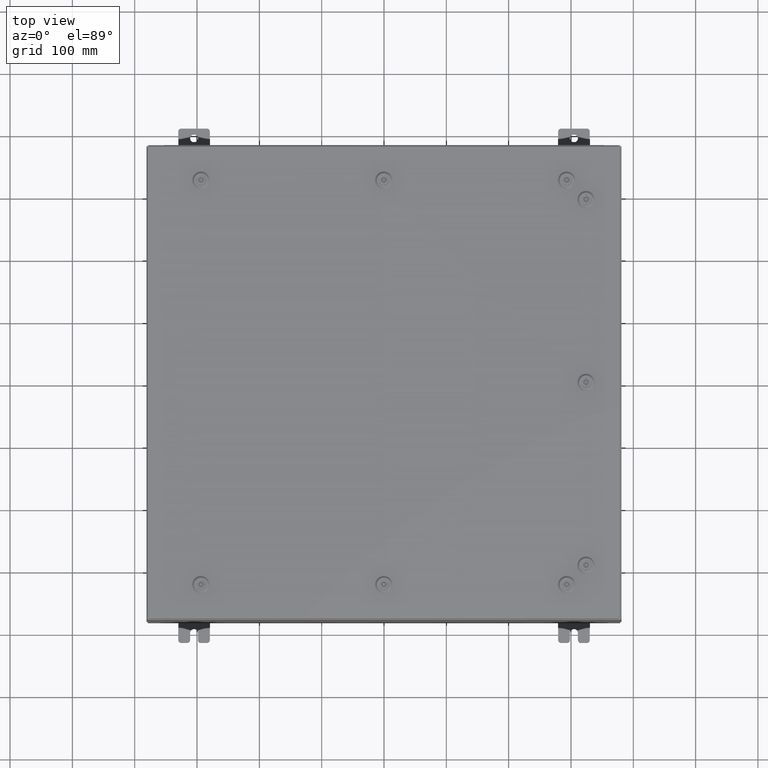
[diagram: clean part render]
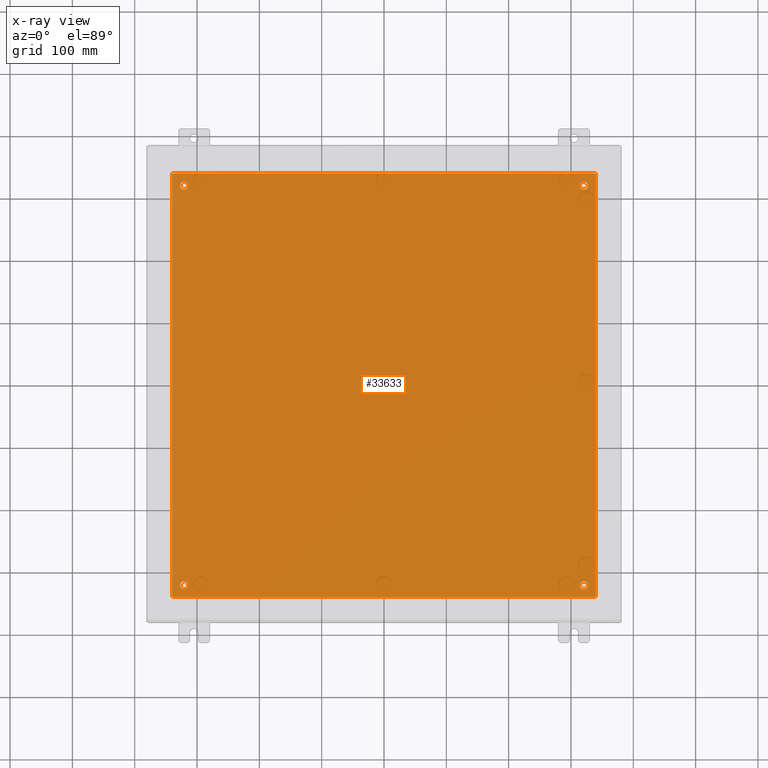
[diagram: x-ray — body ghosted, one internal face saturated and labeled with its STEP entity id]
A machine part, top view, then the same camera in x-ray: the body is ghosted and one INTERNAL B-rep face — a face not visible from any outside direction — is saturated and labeled: STEP entity #33633.
In plain terms, the highlighted planar face has unit normal (0, 0, -1).
Its self-contained STEP definition (entity closure, byte-faithful):
#714 = CIRCLE ( 'NONE', #2988, 0.2500000000000008900 ) ;
#1067 = DIRECTION ( 'NONE',  ( 0.0000000000000000000, 1.000000000000000000, 0.0000000000000000000 ) ) ;
#1345 = DIRECTION ( 'NONE',  ( -0.0000000000000000000, -0.0000000000000000000, 1.000000000000000000 ) ) ;
#1379 = DIRECTION ( 'NONE',  ( -0.0000000000000000000, -0.0000000000000000000, 1.000000000000000000 ) ) ;
#2248 = CIRCLE ( 'NONE', #10581, 0.2500000000000008900 ) ;
#2660 = CARTESIAN_POINT ( 'NONE',  ( 12.87500000000000500, -12.62500000000000000, -0.1039999999999999800 ) ) ;
#2787 = DIRECTION ( 'NONE',  ( -1.000000000000000000, 0.0000000000000000000, 0.0000000000000000000 ) ) ;
#2988 = AXIS2_PLACEMENT_3D ( 'NONE', #12625, #47983, #17736 ) ;
#3883 = ORIENTED_EDGE ( 'NONE', *, *, #20614, .F. ) ;
#4132 = LINE ( 'NONE', #39461, #39714 ) ;
#4395 = CIRCLE ( 'NONE', #26288, 0.2500000000000008900 ) ;
#4664 = CARTESIAN_POINT ( 'NONE',  ( 13.38299999999999900, 13.38299999999999700, -0.1040000000000009100 ) ) ;
#5447 = VERTEX_POINT ( 'NONE', #11647 ) ;
#5667 = PLANE ( 'NONE',  #16362 ) ;
#6120 = DIRECTION ( 'NONE',  ( -0.0000000000000000000, -0.0000000000000000000, 1.000000000000000000 ) ) ;
#7045 = VERTEX_POINT ( 'NONE', #4664 ) ;
#8343 = AXIS2_PLACEMENT_3D ( 'NONE', #27027, #62480, #32063 ) ;
#9011 = ORIENTED_EDGE ( 'NONE', *, *, #16646, .T. ) ;
#10581 = AXIS2_PLACEMENT_3D ( 'NONE', #56795, #26489, #61929 ) ;
#10602 = CARTESIAN_POINT ( 'NONE',  ( -13.38299999999999900, 13.38299999999999700, -0.1040000000000009100 ) ) ;
#10727 = DIRECTION ( 'NONE',  ( -1.000000000000000000, 0.0000000000000000000, -0.0000000000000000000 ) ) ;
#11104 = CARTESIAN_POINT ( 'NONE',  ( -12.37500000000000400, -12.62500000000000000, -0.1039999999999999800 ) ) ;
#11647 = CARTESIAN_POINT ( 'NONE',  ( -13.38299999999999900, -13.38299999999999900, -0.1040000000000009100 ) ) ;
#12415 = DIRECTION ( 'NONE',  ( -0.0000000000000000000, -0.0000000000000000000, 1.000000000000000000 ) ) ;
#12625 = CARTESIAN_POINT ( 'NONE',  ( 12.62500000000000400, 12.62500000000000000, -0.1039999999999999800 ) ) ;
#12719 = CARTESIAN_POINT ( 'NONE',  ( 12.37500000000000400, -12.62500000000000000, -0.1039999999999999800 ) ) ;
#12848 = VERTEX_POINT ( 'NONE', #11104 ) ;
#14399 = FACE_BOUND ( 'NONE', #43128, .T. ) ;
#14846 = CARTESIAN_POINT ( 'NONE',  ( -12.87500000000000500, 12.62500000000000000, -0.1039999999999999800 ) ) ;
#16071 = ORIENTED_EDGE ( 'NONE', *, *, #32664, .T. ) ;
#16362 = AXIS2_PLACEMENT_3D ( 'NONE', #30779, #40749, #10727 ) ;
#16646 = EDGE_CURVE ( 'NONE', #58703, #39106, #4395, .T. ) ;
#17312 = ORIENTED_EDGE ( 'NONE', *, *, #38198, .F. ) ;
#17736 = DIRECTION ( 'NONE',  ( -1.000000000000000000, 0.0000000000000000000, 0.0000000000000000000 ) ) ;
#17975 = EDGE_CURVE ( 'NONE', #42932, #57789, #43805, .T. ) ;
#19218 = CIRCLE ( 'NONE', #37064, 0.2500000000000008900 ) ;
#19616 = DIRECTION ( 'NONE',  ( -1.000000000000000000, -0.0000000000000000000, -0.0000000000000000000 ) ) ;
#20442 = EDGE_LOOP ( 'NONE', ( #3883, #62922, #17312, #30615 ) ) ;
#20614 = EDGE_CURVE ( 'NONE', #5447, #23952, #4132, .T. ) ;
#20681 = VERTEX_POINT ( 'NONE', #54798 ) ;
#21953 = AXIS2_PLACEMENT_3D ( 'NONE', #31631, #1379, #36733 ) ;
#22074 = VERTEX_POINT ( 'NONE', #37274 ) ;
#23952 = VERTEX_POINT ( 'NONE', #25580 ) ;
#24440 = DIRECTION ( 'NONE',  ( 1.000000000000000000, -0.0000000000000000000, -0.0000000000000000000 ) ) ;
#25464 = ORIENTED_EDGE ( 'NONE', *, *, #17975, .T. ) ;
#25580 = CARTESIAN_POINT ( 'NONE',  ( 13.38299999999999900, -13.38299999999999700, -0.1040000000000009100 ) ) ;
#26224 = ORIENTED_EDGE ( 'NONE', *, *, #38656, .T. ) ;
#26288 = AXIS2_PLACEMENT_3D ( 'NONE', #36338, #6120, #41445 ) ;
#26297 = FACE_BOUND ( 'NONE', #59416, .T. ) ;
#26489 = DIRECTION ( 'NONE',  ( -0.0000000000000000000, -0.0000000000000000000, 1.000000000000000000 ) ) ;
#27027 = CARTESIAN_POINT ( 'NONE',  ( -12.62500000000000400, -12.62500000000000000, -0.1039999999999999800 ) ) ;
#27855 = FACE_BOUND ( 'NONE', #59187, .T. ) ;
#28868 = DIRECTION ( 'NONE',  ( 0.0000000000000000000, -1.000000000000000000, 0.0000000000000000000 ) ) ;
#30615 = ORIENTED_EDGE ( 'NONE', *, *, #32398, .F. ) ;
#30665 = CARTESIAN_POINT ( 'NONE',  ( 12.37500000000000400, 12.62500000000000000, -0.1039999999999999800 ) ) ;
#30672 = VECTOR ( 'NONE', #19616, 39.37007874015748100 ) ;
#30779 = CARTESIAN_POINT ( 'NONE',  ( 0.0000000000000000000, 0.0000000000000000000, -0.1039999999999999800 ) ) ;
#30981 = FACE_BOUND ( 'NONE', #57098, .T. ) ;
#31595 = CARTESIAN_POINT ( 'NONE',  ( -12.62500000000000400, -12.62500000000000000, -0.1039999999999999800 ) ) ;
#31631 = CARTESIAN_POINT ( 'NONE',  ( 12.62500000000000400, -12.62500000000000000, -0.1039999999999999800 ) ) ;
#32063 = DIRECTION ( 'NONE',  ( -1.000000000000000000, 0.0000000000000000000, 0.0000000000000000000 ) ) ;
#32289 = VERTEX_POINT ( 'NONE', #10602 ) ;
#32398 = EDGE_CURVE ( 'NONE', #23952, #7045, #37415, .T. ) ;
#32499 = AXIS2_PLACEMENT_3D ( 'NONE', #31595, #1345, #36701 ) ;
#32664 = EDGE_CURVE ( 'NONE', #20681, #36180, #19218, .T. ) ;
#33033 = DIRECTION ( 'NONE',  ( -0.0000000000000000000, -0.0000000000000000000, 1.000000000000000000 ) ) ;
#33633 = ADVANCED_FACE ( 'NONE', ( #30981, #26297, #27855, #14399, #65183 ), #5667, .T. ) ;
#36180 = VERTEX_POINT ( 'NONE', #14846 ) ;
#36338 = CARTESIAN_POINT ( 'NONE',  ( 12.62500000000000400, -12.62500000000000000, -0.1039999999999999800 ) ) ;
#36701 = DIRECTION ( 'NONE',  ( -1.000000000000000000, 0.0000000000000000000, 0.0000000000000000000 ) ) ;
#36733 = DIRECTION ( 'NONE',  ( -1.000000000000000000, 0.0000000000000000000, 0.0000000000000000000 ) ) ;
#37064 = AXIS2_PLACEMENT_3D ( 'NONE', #63487, #33033, #2787 ) ;
#37274 = CARTESIAN_POINT ( 'NONE',  ( -12.87500000000000500, -12.62500000000000000, -0.1039999999999999800 ) ) ;
#37415 = LINE ( 'NONE', #56617, #50881 ) ;
#38198 = EDGE_CURVE ( 'NONE', #7045, #32289, #42536, .T. ) ;
#38656 = EDGE_CURVE ( 'NONE', #57789, #42932, #714, .T. ) ;
#39106 = VERTEX_POINT ( 'NONE', #12719 ) ;
#39461 = CARTESIAN_POINT ( 'NONE',  ( -13.50000000000000000, -13.38299999999999900, -0.1040000000000009100 ) ) ;
#39714 = VECTOR ( 'NONE', #24440, 39.37007874015748100 ) ;
#39823 = EDGE_CURVE ( 'NONE', #32289, #5447, #44905, .T. ) ;
#40749 = DIRECTION ( 'NONE',  ( 0.0000000000000000000, 0.0000000000000000000, -1.000000000000000000 ) ) ;
#41445 = DIRECTION ( 'NONE',  ( -1.000000000000000000, 0.0000000000000000000, 0.0000000000000000000 ) ) ;
#42536 = LINE ( 'NONE', #55037, #30672 ) ;
#42682 = CARTESIAN_POINT ( 'NONE',  ( 12.62500000000000400, 12.62500000000000000, -0.1039999999999999800 ) ) ;
#42827 = CIRCLE ( 'NONE', #8343, 0.2500000000000008900 ) ;
#42908 = ORIENTED_EDGE ( 'NONE', *, *, #47795, .T. ) ;
#42932 = VERTEX_POINT ( 'NONE', #54347 ) ;
#43128 = EDGE_LOOP ( 'NONE', ( #16071, #49710 ) ) ;
#43287 = VECTOR ( 'NONE', #28868, 39.37007874015748100 ) ;
#43805 = CIRCLE ( 'NONE', #52991, 0.2500000000000008900 ) ;
#44905 = LINE ( 'NONE', #59221, #43287 ) ;
#45592 = EDGE_CURVE ( 'NONE', #22074, #12848, #42827, .T. ) ;
#46692 = CIRCLE ( 'NONE', #32499, 0.2500000000000008900 ) ;
#47795 = EDGE_CURVE ( 'NONE', #12848, #22074, #46692, .T. ) ;
#47799 = DIRECTION ( 'NONE',  ( -1.000000000000000000, 0.0000000000000000000, 0.0000000000000000000 ) ) ;
#47983 = DIRECTION ( 'NONE',  ( -0.0000000000000000000, -0.0000000000000000000, 1.000000000000000000 ) ) ;
#48369 = CIRCLE ( 'NONE', #21953, 0.2500000000000008900 ) ;
#49208 = EDGE_CURVE ( 'NONE', #36180, #20681, #2248, .T. ) ;
#49710 = ORIENTED_EDGE ( 'NONE', *, *, #49208, .T. ) ;
#50881 = VECTOR ( 'NONE', #1067, 39.37007874015748100 ) ;
#52991 = AXIS2_PLACEMENT_3D ( 'NONE', #42682, #12415, #47799 ) ;
#54347 = CARTESIAN_POINT ( 'NONE',  ( 12.87500000000000500, 12.62500000000000000, -0.1039999999999999800 ) ) ;
#54798 = CARTESIAN_POINT ( 'NONE',  ( -12.37500000000000400, 12.62500000000000000, -0.1039999999999999800 ) ) ;
#55037 = CARTESIAN_POINT ( 'NONE',  ( 13.50000000000000000, 13.38299999999999900, -0.1040000000000009100 ) ) ;
#56617 = CARTESIAN_POINT ( 'NONE',  ( 13.38299999999999900, -13.38299999999999700, -0.1040000000000009100 ) ) ;
#56795 = CARTESIAN_POINT ( 'NONE',  ( -12.62500000000000400, 12.62500000000000000, -0.1039999999999999800 ) ) ;
#57098 = EDGE_LOOP ( 'NONE', ( #42908, #58087 ) ) ;
#57789 = VERTEX_POINT ( 'NONE', #30665 ) ;
#58087 = ORIENTED_EDGE ( 'NONE', *, *, #45592, .T. ) ;
#58502 = EDGE_CURVE ( 'NONE', #39106, #58703, #48369, .T. ) ;
#58703 = VERTEX_POINT ( 'NONE', #2660 ) ;
#59187 = EDGE_LOOP ( 'NONE', ( #25464, #26224 ) ) ;
#59221 = CARTESIAN_POINT ( 'NONE',  ( -13.38299999999999900, 13.38299999999999700, -0.1040000000000009100 ) ) ;
#59416 = EDGE_LOOP ( 'NONE', ( #9011, #65299 ) ) ;
#61929 = DIRECTION ( 'NONE',  ( -1.000000000000000000, 0.0000000000000000000, 0.0000000000000000000 ) ) ;
#62480 = DIRECTION ( 'NONE',  ( -0.0000000000000000000, -0.0000000000000000000, 1.000000000000000000 ) ) ;
#62922 = ORIENTED_EDGE ( 'NONE', *, *, #39823, .F. ) ;
#63487 = CARTESIAN_POINT ( 'NONE',  ( -12.62500000000000400, 12.62500000000000000, -0.1039999999999999800 ) ) ;
#65183 = FACE_OUTER_BOUND ( 'NONE', #20442, .T. ) ;
#65299 = ORIENTED_EDGE ( 'NONE', *, *, #58502, .T. ) ;